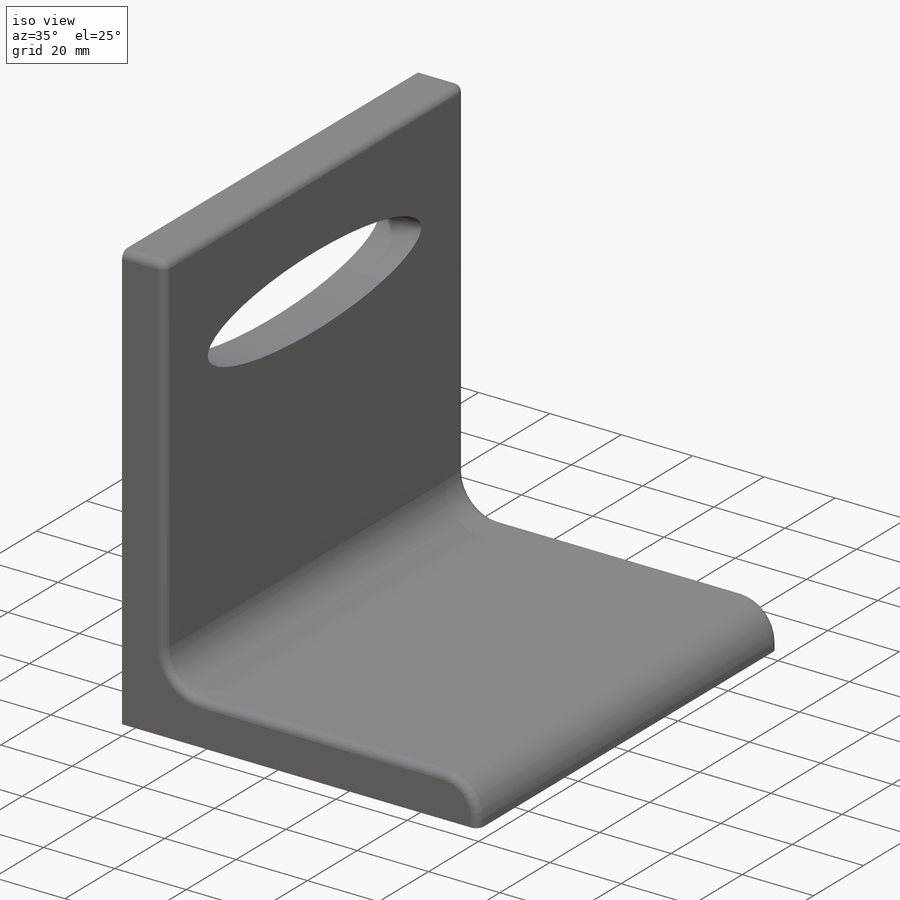
[diagram: iso view]
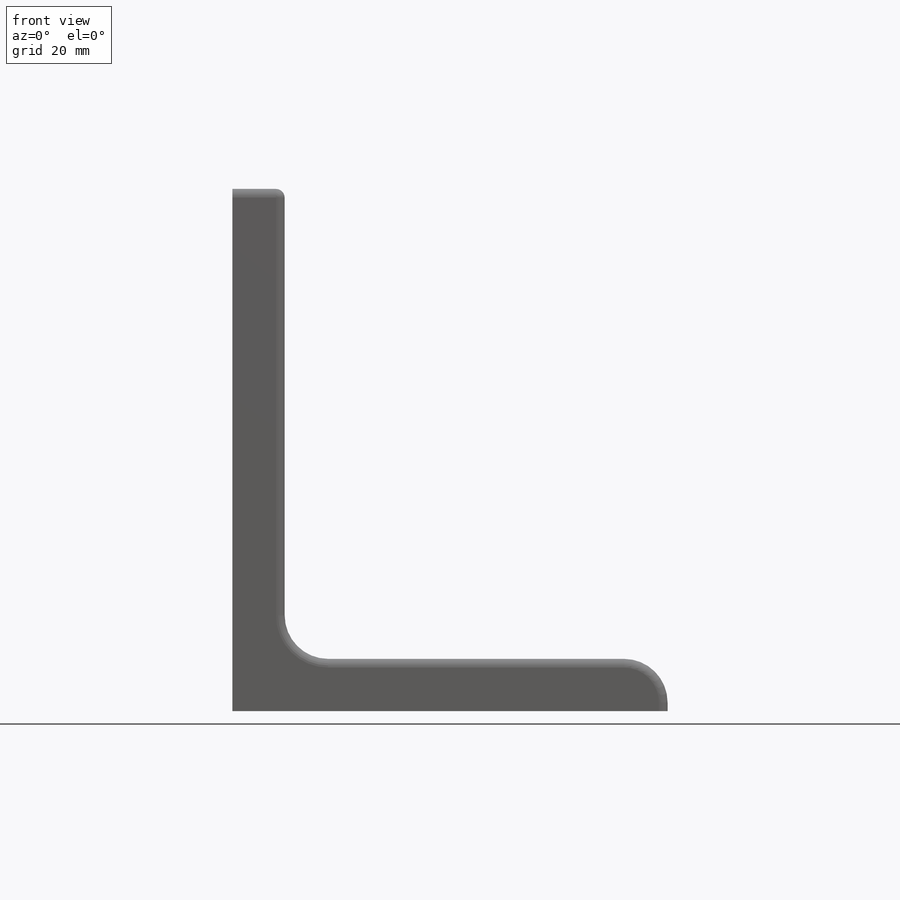
[diagram: front view]
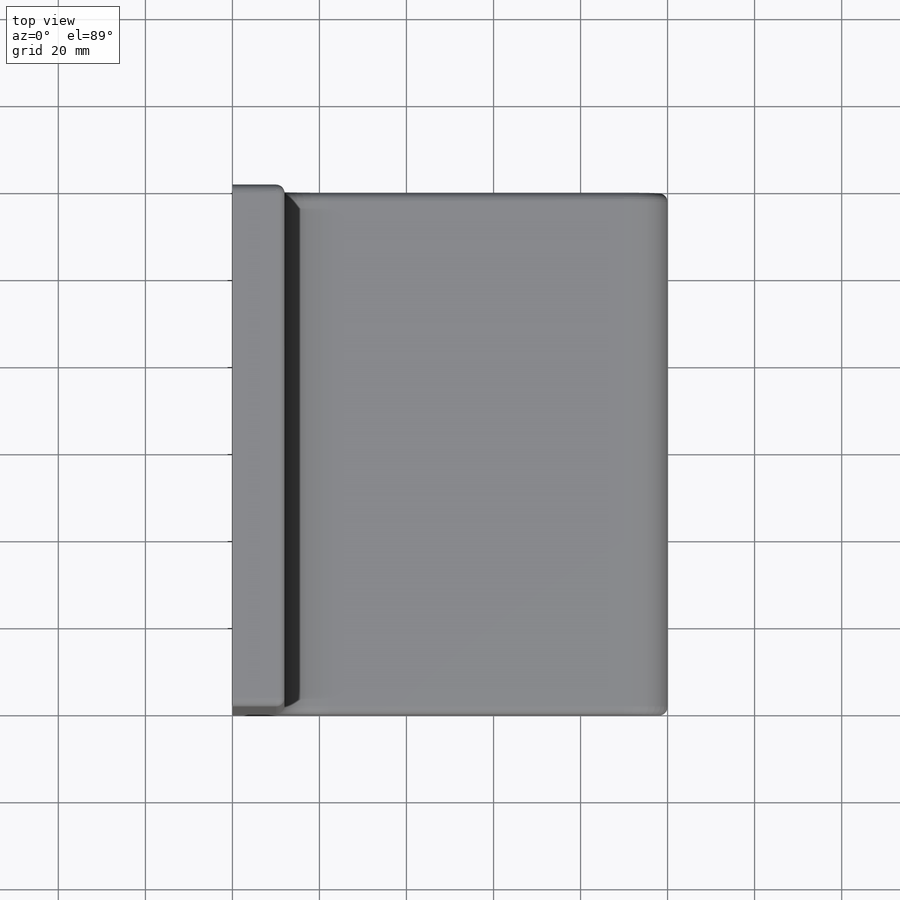
[diagram: top view]
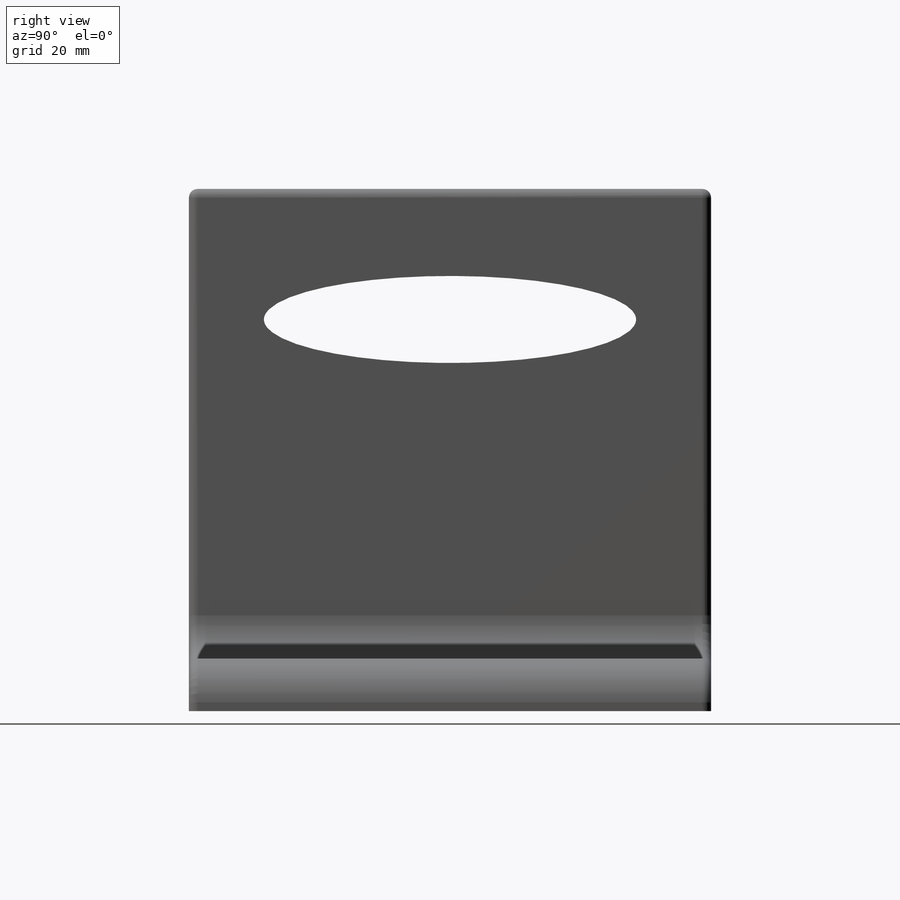
[diagram: right view]
SOLIDWORKS PART (.sldprt)
format: sldprt  version: not decoded by parser v0  size: 243,200 bytes
history: native  units: mm
features: fillet x5, plane x3, sketch x2, material x1, extrude x1, cut_extrude x1 (+10 scaffold rows collapsed)
feature tree (23):
  scaffold x10  (default folders/planes/origin — collapsed)
  material  "Matériau <non spécifié>"
  plane  "Plan de face"
  plane  "Plan de dessus"
  plane  "Plan de droite"
  sketch  "Esquisse1"  dims[D1=100.0mm D2=12.0mm D3=120.0mm D4=12.0mm]
  extrude  "Boss.-Extru.1"  Depth=120mm
  sketch  "Esquisse2"  dims[D1=60.0mm D2=30.0mm D3=10.0mm]
  cut_extrude  "Enlèv. mat.-Extru.1"  Depth=12mm
  fillet  "Congé1"  Radius=10mm
  fillet  "Congé2"  Radius=10mm
  fillet  "Congé3"  Radius=2mm
  fillet  "Congé4"  Radius=2mm
  fillet  "Congé5"  Radius=2mm
decode coverage: 9 of 9 modeling features carry decoded parameters
note: suppression state not decoded; provenance and decode notes live in map.json
